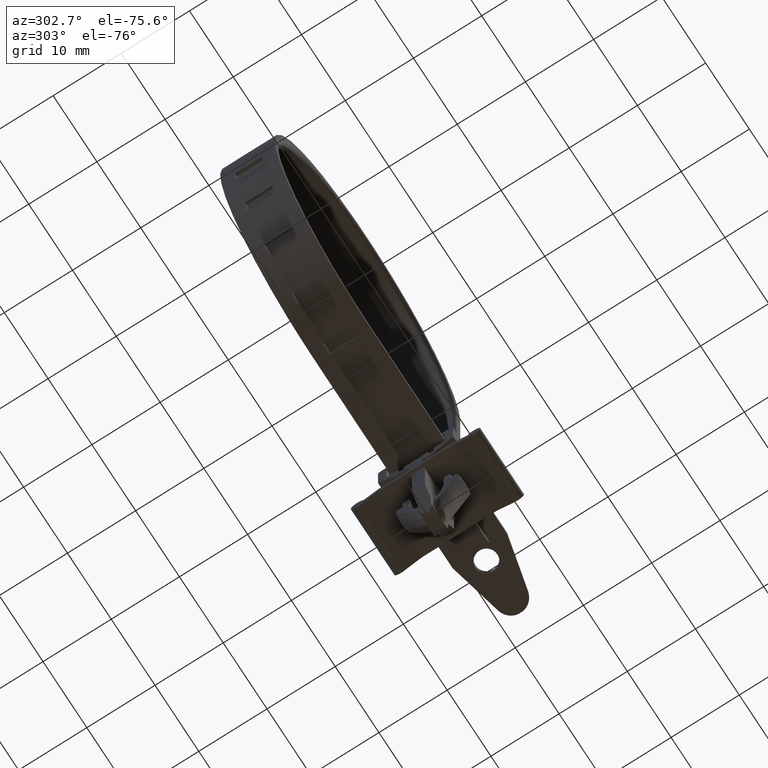
[diagram: clean part render]
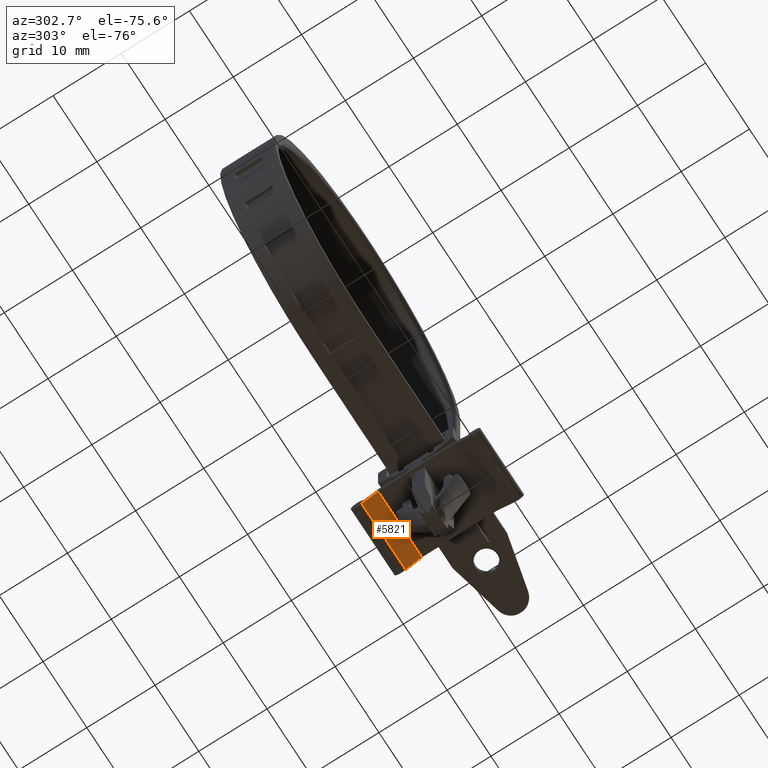
[diagram: same view with one face highlighted and labeled with its STEP entity id]
A machine part, auxiliary view. The second image highlights one B-rep face of the part: STEP entity #5821.
In plain terms, the highlighted face is a freeform B-spline surface patch.
Its self-contained STEP definition (entity closure, byte-faithful):
#5009=CARTESIAN_POINT('',(7.200000000000100,7.879160815548421,-19.183986959648550));
#5010=VERTEX_POINT('',#5009);
#5025=CARTESIAN_POINT('',(7.200000000000100,5.499952000000000,-18.100010999999899));
#5026=VERTEX_POINT('',#5025);
#5027=CARTESIAN_POINT('',(7.200000000000100,5.499952000000000,-18.100010999999899));
#5028=CARTESIAN_POINT('',(7.200000000000100,7.879160815548421,-19.183986959648550));
#5029=QUASI_UNIFORM_CURVE('',1,(#5027,#5028),.UNSPECIFIED.,.F.,.U.);
#5030=EDGE_CURVE('',#5026,#5010,#5029,.T.);
#5776=CARTESIAN_POINT('',(17.199999999999999,7.879160815548421,-19.183986959648550));
#5777=VERTEX_POINT('',#5776);
#5792=CARTESIAN_POINT('',(17.199999999999999,7.879160815548421,-19.183986959648550));
#5793=CARTESIAN_POINT('',(7.200000000000100,7.879160815548421,-19.183986959648550));
#5794=QUASI_UNIFORM_CURVE('',1,(#5792,#5793),.UNSPECIFIED.,.F.,.U.);
#5795=EDGE_CURVE('',#5777,#5010,#5794,.T.);
#5800=CARTESIAN_POINT('',(6.700499795909328,7.998002255410186,-19.238131494524861));
#5801=CARTESIAN_POINT('',(6.700499795909328,5.381110640435626,-18.045866458021809));
#5802=CARTESIAN_POINT('',(17.699501008753479,7.998002255410186,-19.238131494524861));
#5803=CARTESIAN_POINT('',(17.699501008753479,5.381110640435626,-18.045866458021809));
#5804=B_SPLINE_SURFACE_WITH_KNOTS('',1,1,((#5800,#5802),(#5801,#5803)),.UNSPECIFIED.,.F.,.F.,.U.,(2,2),(2,2),(0.0,2.875694288653051),(0.0,10.999001212844149),.UNSPECIFIED.);
#5805=ORIENTED_EDGE('',*,*,#5030,.T.);
#5806=ORIENTED_EDGE('',*,*,#5795,.F.);
#5807=CARTESIAN_POINT('',(17.199999999999999,5.499952000000000,-18.100010999999899));
#5808=VERTEX_POINT('',#5807);
#5809=CARTESIAN_POINT('',(17.199999999999999,5.499952000000000,-18.100010999999899));
#5810=CARTESIAN_POINT('',(17.199999999999999,7.879160815548421,-19.183986959648550));
#5811=QUASI_UNIFORM_CURVE('',1,(#5809,#5810),.UNSPECIFIED.,.F.,.U.);
#5812=EDGE_CURVE('',#5808,#5777,#5811,.T.);
#5813=ORIENTED_EDGE('',*,*,#5812,.F.);
#5814=CARTESIAN_POINT('',(17.199999999999999,5.499952000000000,-18.100010999999899));
#5815=CARTESIAN_POINT('',(7.200000000000100,5.499952000000000,-18.100010999999899));
#5816=QUASI_UNIFORM_CURVE('',1,(#5814,#5815),.UNSPECIFIED.,.F.,.U.);
#5817=EDGE_CURVE('',#5808,#5026,#5816,.T.);
#5818=ORIENTED_EDGE('',*,*,#5817,.T.);
#5819=EDGE_LOOP('',(#5805,#5806,#5813,#5818));
#5820=FACE_OUTER_BOUND('',#5819,.T.);
#5821=ADVANCED_FACE('',(#5820),#5804,.F.);